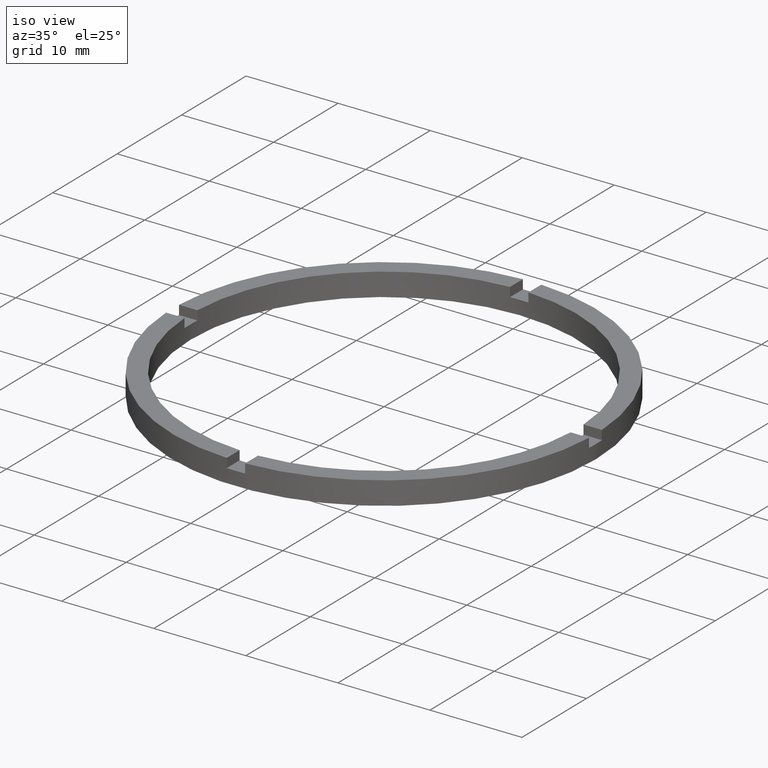
[diagram: clean part render]
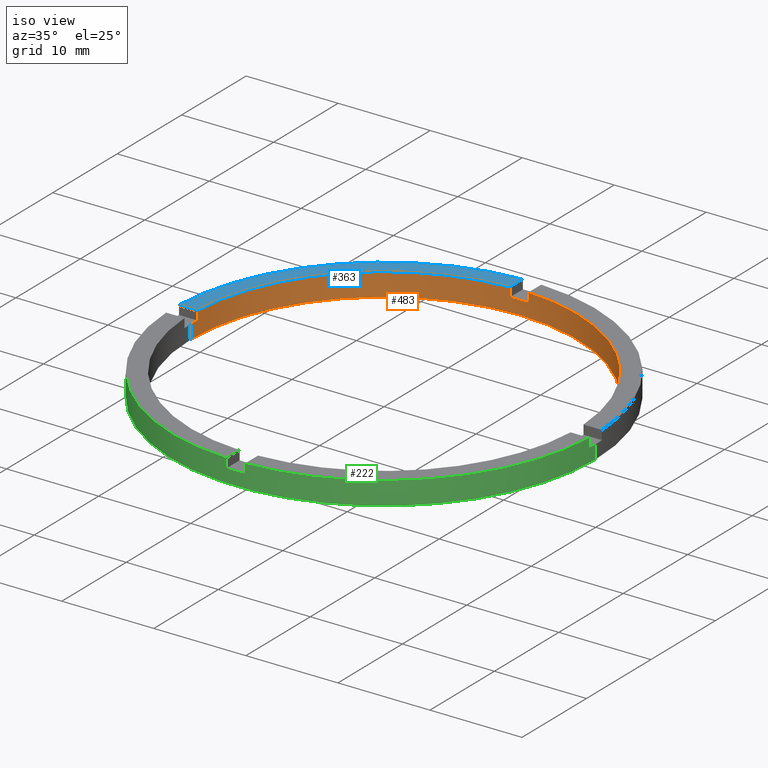
[diagram: same view with three faces highlighted in distinct colors, each labeled with its STEP entity id]
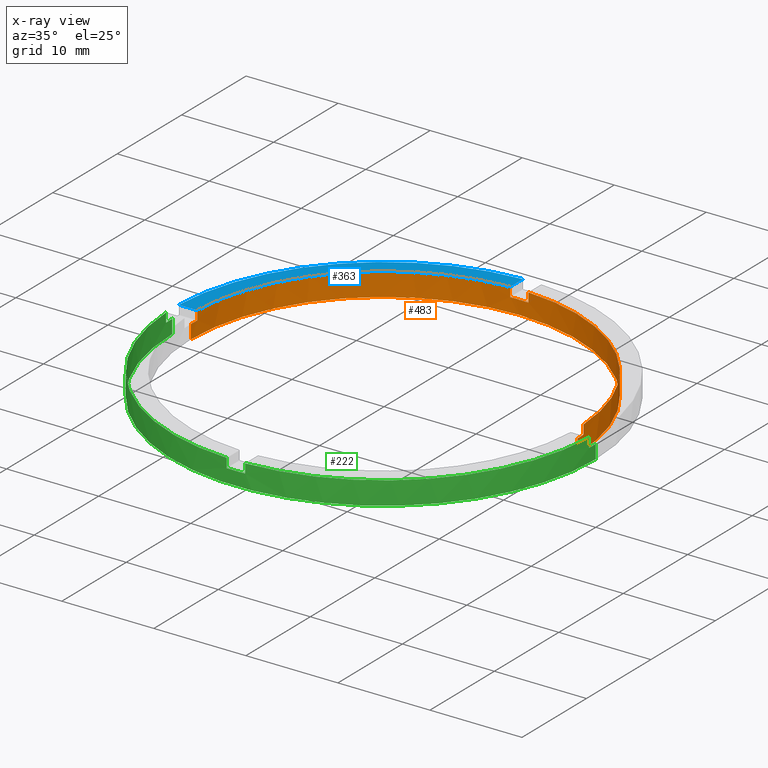
[diagram: x-ray of the same camera — body ghosted, the three highlighted faces saturated]
A machine part, iso view with three faces highlighted in distinct colors.
The next image is the same camera in x-ray (body ghosted, the three faces saturated) — at least one of them is partly hidden behind the body in this view.
Their STEP definitions:

[orange] entity #483 — the highlighted cylindrical surface (partial cylindrical patch) has radius 21 mm, axis along (-0, -0, -1).
#11 = EDGE_LOOP ( 'NONE', ( #574, #739, #545, #306, #509, #579, #757, #229, #475, #28, #548, #562 ) ) ;
#12 = EDGE_CURVE ( 'NONE', #748, #541, #664, .T. ) ;
#25 = CARTESIAN_POINT ( 'NONE',  ( 20.97617696340304150, 0.9999999999998419042, 2.500000000000000000 ) ) ;
#28 = ORIENTED_EDGE ( 'NONE', *, *, #172, .T. ) ;
#30 = DIRECTION ( 'NONE',  ( -0.000000000000000000, -0.000000000000000000, -1.000000000000000000 ) ) ;
#38 = DIRECTION ( 'NONE',  ( -0.000000000000000000, -0.000000000000000000, -1.000000000000000000 ) ) ;
#41 = VERTEX_POINT ( 'NONE', #604 ) ;
#70 = EDGE_CURVE ( 'NONE', #41, #119, #364, .T. ) ;
#72 = AXIS2_PLACEMENT_3D ( 'NONE', #301, #345, #282 ) ;
#83 = CARTESIAN_POINT ( 'NONE',  ( 0.000000000000000000, 0.000000000000000000, 2.500000000000000000 ) ) ;
#98 = DIRECTION ( 'NONE',  ( 0.000000000000000000, 0.000000000000000000, 1.000000000000000000 ) ) ;
#103 = AXIS2_PLACEMENT_3D ( 'NONE', #646, #770, #223 ) ;
#104 = DIRECTION ( 'NONE',  ( 0.000000000000000000, 0.000000000000000000, 1.000000000000000000 ) ) ;
#107 = VECTOR ( 'NONE', #38, 1000.000000000000000 ) ;
#119 = VERTEX_POINT ( 'NONE', #544 ) ;
#138 = VECTOR ( 'NONE', #212, 1000.000000000000000 ) ;
#152 = CARTESIAN_POINT ( 'NONE',  ( -21.00000000000000000, 0.000000000000000000, 2.500000000000000000 ) ) ;
#161 = CARTESIAN_POINT ( 'NONE',  ( 20.97617696340304150, 0.9999999999998419042, 2.500000000000000000 ) ) ;
#163 = CARTESIAN_POINT ( 'NONE',  ( 0.000000000000000000, 0.000000000000000000, 1.500000000000000000 ) ) ;
#168 = CYLINDRICAL_SURFACE ( 'NONE', #263, 21.00000000000000000 ) ;
#169 = DIRECTION ( 'NONE',  ( 1.000000000000000000, 0.000000000000000000, 0.000000000000000000 ) ) ;
#172 = EDGE_CURVE ( 'NONE', #537, #267, #392, .T. ) ;
#183 = LINE ( 'NONE', #668, #454 ) ;
#212 = DIRECTION ( 'NONE',  ( -0.000000000000000000, -0.000000000000000000, -1.000000000000000000 ) ) ;
#223 = DIRECTION ( 'NONE',  ( 1.000000000000000000, 0.000000000000000000, 0.000000000000000000 ) ) ;
#227 = CARTESIAN_POINT ( 'NONE',  ( -20.97617696340303439, 0.9999999999999749090, 1.500000000000000000 ) ) ;
#228 = DIRECTION ( 'NONE',  ( 0.000000000000000000, 0.000000000000000000, 1.000000000000000000 ) ) ;
#229 = ORIENTED_EDGE ( 'NONE', *, *, #70, .T. ) ;
#239 = CARTESIAN_POINT ( 'NONE',  ( 21.00000000000000000, 2.571758278209441661E-15, 1.500000000000000000 ) ) ;
#259 = EDGE_CURVE ( 'NONE', #638, #504, #677, .T. ) ;
#263 = AXIS2_PLACEMENT_3D ( 'NONE', #83, #327, #760 ) ;
#267 = VERTEX_POINT ( 'NONE', #776 ) ;
#274 = DIRECTION ( 'NONE',  ( 1.000000000000000000, 0.000000000000000000, 0.000000000000000000 ) ) ;
#277 = DIRECTION ( 'NONE',  ( 0.000000000000000000, 0.000000000000000000, 1.000000000000000000 ) ) ;
#282 = DIRECTION ( 'NONE',  ( 1.000000000000000000, 0.000000000000000000, 0.000000000000000000 ) ) ;
#298 = EDGE_CURVE ( 'NONE', #537, #119, #425, .T. ) ;
#301 = CARTESIAN_POINT ( 'NONE',  ( 0.000000000000000000, 0.000000000000000000, 2.500000000000000000 ) ) ;
#306 = ORIENTED_EDGE ( 'NONE', *, *, #581, .T. ) ;
#327 = DIRECTION ( 'NONE',  ( -0.000000000000000000, -0.000000000000000000, -1.000000000000000000 ) ) ;
#339 = CARTESIAN_POINT ( 'NONE',  ( 20.97617696340304150, 0.9999999999998419042, 1.500000000000000000 ) ) ;
#341 = CARTESIAN_POINT ( 'NONE',  ( -1.000000000000025757, 20.97617696340303084, 1.500000000000000000 ) ) ;
#345 = DIRECTION ( 'NONE',  ( 0.000000000000000000, 0.000000000000000000, 1.000000000000000000 ) ) ;
#364 = CIRCLE ( 'NONE', #558, 21.00000000000000000 ) ;
#388 = CARTESIAN_POINT ( 'NONE',  ( 21.00000000000000000, 2.571758278209441661E-15, 0.000000000000000000 ) ) ;
#392 = CIRCLE ( 'NONE', #399, 21.00000000000000000 ) ;
#397 = VERTEX_POINT ( 'NONE', #388 ) ;
#398 = VERTEX_POINT ( 'NONE', #754 ) ;
#399 = AXIS2_PLACEMENT_3D ( 'NONE', #431, #98, #422 ) ;
#413 = VECTOR ( 'NONE', #104, 1000.000000000000000 ) ;
#422 = DIRECTION ( 'NONE',  ( 1.000000000000000000, 0.000000000000000000, 0.000000000000000000 ) ) ;
#424 = CIRCLE ( 'NONE', #72, 21.00000000000000000 ) ;
#425 = LINE ( 'NONE', #633, #429 ) ;
#428 = FACE_OUTER_BOUND ( 'NONE', #11, .T. ) ;
#429 = VECTOR ( 'NONE', #277, 1000.000000000000000 ) ;
#431 = CARTESIAN_POINT ( 'NONE',  ( 0.000000000000000000, 0.000000000000000000, 1.500000000000000000 ) ) ;
#435 = CIRCLE ( 'NONE', #746, 21.00000000000000000 ) ;
#436 = CIRCLE ( 'NONE', #563, 21.00000000000000000 ) ;
#450 = EDGE_CURVE ( 'NONE', #560, #397, #678, .T. ) ;
#454 = VECTOR ( 'NONE', #600, 1000.000000000000000 ) ;
#461 = EDGE_CURVE ( 'NONE', #397, #398, #436, .T. ) ;
#471 = DIRECTION ( 'NONE',  ( 0.000000000000000000, 0.000000000000000000, 1.000000000000000000 ) ) ;
#475 = ORIENTED_EDGE ( 'NONE', *, *, #298, .F. ) ;
#483 = ADVANCED_FACE ( 'NONE', ( #428 ), #168, .F. ) ;
#486 = DIRECTION ( 'NONE',  ( 1.000000000000000000, 0.000000000000000000, 0.000000000000000000 ) ) ;
#489 = EDGE_CURVE ( 'NONE', #267, #398, #687, .T. ) ;
#497 = EDGE_CURVE ( 'NONE', #560, #541, #435, .T. ) ;
#504 = VERTEX_POINT ( 'NONE', #341 ) ;
#509 = ORIENTED_EDGE ( 'NONE', *, *, #561, .F. ) ;
#537 = VERTEX_POINT ( 'NONE', #227 ) ;
#541 = VERTEX_POINT ( 'NONE', #339 ) ;
#544 = CARTESIAN_POINT ( 'NONE',  ( -20.97617696340303439, 0.9999999999999749090, 2.500000000000000000 ) ) ;
#545 = ORIENTED_EDGE ( 'NONE', *, *, #12, .F. ) ;
#548 = ORIENTED_EDGE ( 'NONE', *, *, #489, .T. ) ;
#558 = AXIS2_PLACEMENT_3D ( 'NONE', #566, #228, #486 ) ;
#560 = VERTEX_POINT ( 'NONE', #239 ) ;
#561 = EDGE_CURVE ( 'NONE', #638, #576, #688, .T. ) ;
#562 = ORIENTED_EDGE ( 'NONE', *, *, #461, .F. ) ;
#563 = AXIS2_PLACEMENT_3D ( 'NONE', #583, #471, #169 ) ;
#566 = CARTESIAN_POINT ( 'NONE',  ( 0.000000000000000000, 0.000000000000000000, 2.500000000000000000 ) ) ;
#574 = ORIENTED_EDGE ( 'NONE', *, *, #450, .F. ) ;
#576 = VERTEX_POINT ( 'NONE', #685 ) ;
#579 = ORIENTED_EDGE ( 'NONE', *, *, #259, .T. ) ;
#581 = EDGE_CURVE ( 'NONE', #748, #576, #424, .T. ) ;
#583 = CARTESIAN_POINT ( 'NONE',  ( 0.000000000000000000, 0.000000000000000000, 0.000000000000000000 ) ) ;
#588 = DIRECTION ( 'NONE',  ( 0.000000000000000000, 0.000000000000000000, 1.000000000000000000 ) ) ;
#600 = DIRECTION ( 'NONE',  ( -0.000000000000000000, -0.000000000000000000, -1.000000000000000000 ) ) ;
#604 = CARTESIAN_POINT ( 'NONE',  ( -1.000000000000025757, 20.97617696340303084, 2.500000000000000000 ) ) ;
#633 = CARTESIAN_POINT ( 'NONE',  ( -20.97617696340303439, 0.9999999999999749090, 2.500000000000000000 ) ) ;
#638 = VERTEX_POINT ( 'NONE', #690 ) ;
#646 = CARTESIAN_POINT ( 'NONE',  ( 0.000000000000000000, 0.000000000000000000, 1.500000000000000000 ) ) ;
#655 = CARTESIAN_POINT ( 'NONE',  ( 21.00000000000000000, 2.571758278209441661E-15, 2.500000000000000000 ) ) ;
#664 = LINE ( 'NONE', #161, #107 ) ;
#668 = CARTESIAN_POINT ( 'NONE',  ( -1.000000000000025757, 20.97617696340303084, 2.500000000000000000 ) ) ;
#677 = CIRCLE ( 'NONE', #103, 21.00000000000000000 ) ;
#678 = LINE ( 'NONE', #655, #138 ) ;
#679 = CARTESIAN_POINT ( 'NONE',  ( 0.9999999999999742428, 20.97617696340303439, 2.500000000000000000 ) ) ;
#685 = CARTESIAN_POINT ( 'NONE',  ( 0.9999999999999742428, 20.97617696340303439, 2.500000000000000000 ) ) ;
#687 = LINE ( 'NONE', #152, #689 ) ;
#688 = LINE ( 'NONE', #679, #413 ) ;
#689 = VECTOR ( 'NONE', #30, 1000.000000000000000 ) ;
#690 = CARTESIAN_POINT ( 'NONE',  ( 0.9999999999999742428, 20.97617696340303439, 1.500000000000000000 ) ) ;
#739 = ORIENTED_EDGE ( 'NONE', *, *, #497, .T. ) ;
#746 = AXIS2_PLACEMENT_3D ( 'NONE', #163, #588, #274 ) ;
#748 = VERTEX_POINT ( 'NONE', #25 ) ;
#754 = CARTESIAN_POINT ( 'NONE',  ( -21.00000000000000000, 0.000000000000000000, 0.000000000000000000 ) ) ;
#757 = ORIENTED_EDGE ( 'NONE', *, *, #766, .F. ) ;
#760 = DIRECTION ( 'NONE',  ( -1.000000000000000000, 0.000000000000000000, 0.000000000000000000 ) ) ;
#766 = EDGE_CURVE ( 'NONE', #41, #504, #183, .T. ) ;
#770 = DIRECTION ( 'NONE',  ( 0.000000000000000000, -0.000000000000000000, 1.000000000000000000 ) ) ;
#776 = CARTESIAN_POINT ( 'NONE',  ( -21.00000000000000000, 0.000000000000000000, 1.500000000000000000 ) ) ;

[blue] entity #363 — the highlighted planar face has unit normal (0, 0, 1).
#41 = VERTEX_POINT ( 'NONE', #604 ) ;
#52 = DIRECTION ( 'NONE',  ( -1.000000000000000000, -1.734723475976807341E-16, 0.000000000000000000 ) ) ;
#64 = CARTESIAN_POINT ( 'NONE',  ( -1.000000000000025757, 22.97825058615211091, 2.500000000000000000 ) ) ;
#70 = EDGE_CURVE ( 'NONE', #41, #119, #364, .T. ) ;
#97 = DIRECTION ( 'NONE',  ( 1.000000000000000000, 0.000000000000000000, 0.000000000000000000 ) ) ;
#118 = ORIENTED_EDGE ( 'NONE', *, *, #589, .F. ) ;
#119 = VERTEX_POINT ( 'NONE', #544 ) ;
#139 = LINE ( 'NONE', #507, #699 ) ;
#166 = CIRCLE ( 'NONE', #361, 23.00000000000000000 ) ;
#201 = ORIENTED_EDGE ( 'NONE', *, *, #70, .F. ) ;
#228 = DIRECTION ( 'NONE',  ( 0.000000000000000000, 0.000000000000000000, 1.000000000000000000 ) ) ;
#258 = EDGE_CURVE ( 'NONE', #720, #41, #139, .T. ) ;
#295 = CARTESIAN_POINT ( 'NONE',  ( 0.000000000000000000, 0.000000000000000000, 2.500000000000000000 ) ) ;
#324 = DIRECTION ( 'NONE',  ( 1.000000000000000000, 0.000000000000000000, -0.000000000000000000 ) ) ;
#335 = DIRECTION ( 'NONE',  ( -0.000000000000000000, -1.000000000000000000, -0.000000000000000000 ) ) ;
#361 = AXIS2_PLACEMENT_3D ( 'NONE', #295, #421, #97 ) ;
#363 = ADVANCED_FACE ( 'NONE', ( #686 ), #712, .T. ) ;
#364 = CIRCLE ( 'NONE', #558, 21.00000000000000000 ) ;
#421 = DIRECTION ( 'NONE',  ( 0.000000000000000000, 0.000000000000000000, 1.000000000000000000 ) ) ;
#433 = LINE ( 'NONE', #670, #698 ) ;
#472 = ORIENTED_EDGE ( 'NONE', *, *, #258, .F. ) ;
#485 = CARTESIAN_POINT ( 'NONE',  ( 0.000000000000000000, 0.000000000000000000, 2.500000000000000000 ) ) ;
#486 = DIRECTION ( 'NONE',  ( 1.000000000000000000, 0.000000000000000000, 0.000000000000000000 ) ) ;
#506 = EDGE_CURVE ( 'NONE', #720, #740, #166, .T. ) ;
#507 = CARTESIAN_POINT ( 'NONE',  ( -1.000000000000025757, 13.00000000000000000, 2.500000000000000000 ) ) ;
#544 = CARTESIAN_POINT ( 'NONE',  ( -20.97617696340303439, 0.9999999999999749090, 2.500000000000000000 ) ) ;
#558 = AXIS2_PLACEMENT_3D ( 'NONE', #566, #228, #486 ) ;
#566 = CARTESIAN_POINT ( 'NONE',  ( 0.000000000000000000, 0.000000000000000000, 2.500000000000000000 ) ) ;
#571 = CARTESIAN_POINT ( 'NONE',  ( -22.97825058615211447, 0.9999999999999746869, 2.500000000000000000 ) ) ;
#589 = EDGE_CURVE ( 'NONE', #119, #740, #433, .T. ) ;
#604 = CARTESIAN_POINT ( 'NONE',  ( -1.000000000000025757, 20.97617696340303084, 2.500000000000000000 ) ) ;
#661 = ORIENTED_EDGE ( 'NONE', *, *, #506, .T. ) ;
#665 = AXIS2_PLACEMENT_3D ( 'NONE', #485, #774, #324 ) ;
#670 = CARTESIAN_POINT ( 'NONE',  ( -13.00000000000018474, 0.9999999999999763522, 2.500000000000000000 ) ) ;
#686 = FACE_OUTER_BOUND ( 'NONE', #725, .T. ) ;
#698 = VECTOR ( 'NONE', #52, 1000.000000000000000 ) ;
#699 = VECTOR ( 'NONE', #335, 1000.000000000000000 ) ;
#712 = PLANE ( 'NONE',  #665 ) ;
#720 = VERTEX_POINT ( 'NONE', #64 ) ;
#725 = EDGE_LOOP ( 'NONE', ( #472, #661, #118, #201 ) ) ;
#740 = VERTEX_POINT ( 'NONE', #571 ) ;
#774 = DIRECTION ( 'NONE',  ( 0.000000000000000000, 0.000000000000000000, 1.000000000000000000 ) ) ;

[green] entity #222 — the highlighted cylindrical surface (partial cylindrical patch) has radius 23 mm, axis along (-0, -0, -1).
#3 = DIRECTION ( 'NONE',  ( 1.000000000000000000, 0.000000000000000000, 0.000000000000000000 ) ) ;
#8 = ORIENTED_EDGE ( 'NONE', *, *, #148, .T. ) ;
#13 = VERTEX_POINT ( 'NONE', #663 ) ;
#14 = VERTEX_POINT ( 'NONE', #88 ) ;
#15 = AXIS2_PLACEMENT_3D ( 'NONE', #333, #526, #594 ) ;
#17 = CARTESIAN_POINT ( 'NONE',  ( 0.000000000000000000, 0.000000000000000000, 2.500000000000000000 ) ) ;
#24 = ORIENTED_EDGE ( 'NONE', *, *, #419, .F. ) ;
#31 = ORIENTED_EDGE ( 'NONE', *, *, #465, .T. ) ;
#62 = DIRECTION ( 'NONE',  ( -0.000000000000000000, -0.000000000000000000, -1.000000000000000000 ) ) ;
#79 = CARTESIAN_POINT ( 'NONE',  ( 0.000000000000000000, 0.000000000000000000, 0.000000000000000000 ) ) ;
#86 = CARTESIAN_POINT ( 'NONE',  ( 0.000000000000000000, 0.000000000000000000, 2.500000000000000000 ) ) ;
#88 = CARTESIAN_POINT ( 'NONE',  ( 0.9999999999998391287, -22.97825058615211802, 2.500000000000000000 ) ) ;
#96 = LINE ( 'NONE', #189, #105 ) ;
#100 = ORIENTED_EDGE ( 'NONE', *, *, #696, .F. ) ;
#105 = VECTOR ( 'NONE', #235, 1000.000000000000000 ) ;
#115 = CYLINDRICAL_SURFACE ( 'NONE', #495, 23.00000000000000000 ) ;
#116 = AXIS2_PLACEMENT_3D ( 'NONE', #735, #346, #598 ) ;
#124 = VERTEX_POINT ( 'NONE', #599 ) ;
#126 = CARTESIAN_POINT ( 'NONE',  ( -23.00000000000000000, 0.000000000000000000, 2.500000000000000000 ) ) ;
#128 = FACE_OUTER_BOUND ( 'NONE', #573, .T. ) ;
#129 = CARTESIAN_POINT ( 'NONE',  ( -1.000000000000160982, -22.97825058615210381, 1.500000000000000000 ) ) ;
#132 = ORIENTED_EDGE ( 'NONE', *, *, #393, .T. ) ;
#137 = LINE ( 'NONE', #140, #680 ) ;
#140 = CARTESIAN_POINT ( 'NONE',  ( -1.000000000000160982, -22.97825058615210381, 2.500000000000000000 ) ) ;
#143 = CIRCLE ( 'NONE', #593, 23.00000000000000000 ) ;
#144 = LINE ( 'NONE', #126, #440 ) ;
#148 = EDGE_CURVE ( 'NONE', #275, #578, #96, .T. ) ;
#153 = AXIS2_PLACEMENT_3D ( 'NONE', #217, #532, #406 ) ;
#174 = DIRECTION ( 'NONE',  ( -0.000000000000000000, -0.000000000000000000, -1.000000000000000000 ) ) ;
#179 = LINE ( 'NONE', #362, #447 ) ;
#189 = CARTESIAN_POINT ( 'NONE',  ( 22.97825058615210381, -1.000000000000157874, 2.500000000000000000 ) ) ;
#190 = CIRCLE ( 'NONE', #610, 23.00000000000000000 ) ;
#193 = DIRECTION ( 'NONE',  ( -0.000000000000000000, -0.000000000000000000, -1.000000000000000000 ) ) ;
#217 = CARTESIAN_POINT ( 'NONE',  ( 0.000000000000000000, 0.000000000000000000, 2.500000000000000000 ) ) ;
#221 = EDGE_CURVE ( 'NONE', #14, #578, #662, .T. ) ;
#222 = ADVANCED_FACE ( 'NONE', ( #128 ), #115, .T. ) ;
#233 = VERTEX_POINT ( 'NONE', #281 ) ;
#235 = DIRECTION ( 'NONE',  ( 0.000000000000000000, 0.000000000000000000, 1.000000000000000000 ) ) ;
#237 = VERTEX_POINT ( 'NONE', #724 ) ;
#256 = CARTESIAN_POINT ( 'NONE',  ( -22.97825058615211091, -1.000000000000025313, 2.500000000000000000 ) ) ;
#275 = VERTEX_POINT ( 'NONE', #590 ) ;
#279 = DIRECTION ( 'NONE',  ( 1.000000000000000000, 0.000000000000000000, 0.000000000000000000 ) ) ;
#281 = CARTESIAN_POINT ( 'NONE',  ( 23.00000000000000000, 2.816687638038912352E-15, 0.000000000000000000 ) ) ;
#283 = ORIENTED_EDGE ( 'NONE', *, *, #350, .T. ) ;
#333 = CARTESIAN_POINT ( 'NONE',  ( 0.000000000000000000, 0.000000000000000000, 1.500000000000000000 ) ) ;
#346 = DIRECTION ( 'NONE',  ( -0.000000000000000000, 0.000000000000000000, 1.000000000000000000 ) ) ;
#350 = EDGE_CURVE ( 'NONE', #237, #124, #144, .T. ) ;
#362 = CARTESIAN_POINT ( 'NONE',  ( 23.00000000000000000, 2.816687638038912352E-15, 2.500000000000000000 ) ) ;
#383 = ORIENTED_EDGE ( 'NONE', *, *, #516, .F. ) ;
#387 = VERTEX_POINT ( 'NONE', #395 ) ;
#389 = VERTEX_POINT ( 'NONE', #534 ) ;
#393 = EDGE_CURVE ( 'NONE', #726, #13, #137, .T. ) ;
#395 = CARTESIAN_POINT ( 'NONE',  ( 0.9999999999998391287, -22.97825058615211802, 1.500000000000000000 ) ) ;
#406 = DIRECTION ( 'NONE',  ( 1.000000000000000000, 0.000000000000000000, 0.000000000000000000 ) ) ;
#409 = EDGE_CURVE ( 'NONE', #14, #387, #693, .T. ) ;
#412 = DIRECTION ( 'NONE',  ( -0.000000000000000000, -0.000000000000000000, -1.000000000000000000 ) ) ;
#417 = CARTESIAN_POINT ( 'NONE',  ( 22.97825058615210381, -1.000000000000157874, 2.500000000000000000 ) ) ;
#419 = EDGE_CURVE ( 'NONE', #237, #467, #702, .T. ) ;
#440 = VECTOR ( 'NONE', #412, 1000.000000000000000 ) ;
#447 = VECTOR ( 'NONE', #193, 1000.000000000000000 ) ;
#448 = VECTOR ( 'NONE', #62, 1000.000000000000000 ) ;
#453 = DIRECTION ( 'NONE',  ( 0.000000000000000000, 0.000000000000000000, 1.000000000000000000 ) ) ;
#459 = VERTEX_POINT ( 'NONE', #723 ) ;
#465 = EDGE_CURVE ( 'NONE', #124, #233, #143, .T. ) ;
#467 = VERTEX_POINT ( 'NONE', #580 ) ;
#495 = AXIS2_PLACEMENT_3D ( 'NONE', #86, #174, #592 ) ;
#508 = CARTESIAN_POINT ( 'NONE',  ( 0.000000000000000000, 0.000000000000000000, 1.500000000000000000 ) ) ;
#516 = EDGE_CURVE ( 'NONE', #726, #387, #683, .T. ) ;
#519 = DIRECTION ( 'NONE',  ( -0.000000000000000000, -0.000000000000000000, -1.000000000000000000 ) ) ;
#526 = DIRECTION ( 'NONE',  ( 0.000000000000000000, 0.000000000000000000, 1.000000000000000000 ) ) ;
#532 = DIRECTION ( 'NONE',  ( 0.000000000000000000, 0.000000000000000000, 1.000000000000000000 ) ) ;
#533 = ORIENTED_EDGE ( 'NONE', *, *, #704, .F. ) ;
#534 = CARTESIAN_POINT ( 'NONE',  ( 23.00000000000000000, 2.816687638038912352E-15, 1.500000000000000000 ) ) ;
#551 = ORIENTED_EDGE ( 'NONE', *, *, #744, .T. ) ;
#573 = EDGE_LOOP ( 'NONE', ( #722, #100, #8, #641, #635, #383, #132, #533, #551, #24, #283, #31 ) ) ;
#578 = VERTEX_POINT ( 'NONE', #417 ) ;
#580 = CARTESIAN_POINT ( 'NONE',  ( -22.97825058615211091, -1.000000000000025313, 1.500000000000000000 ) ) ;
#590 = CARTESIAN_POINT ( 'NONE',  ( 22.97825058615210381, -1.000000000000157874, 1.500000000000000000 ) ) ;
#592 = DIRECTION ( 'NONE',  ( -1.000000000000000000, 0.000000000000000000, 0.000000000000000000 ) ) ;
#593 = AXIS2_PLACEMENT_3D ( 'NONE', #79, #627, #279 ) ;
#594 = DIRECTION ( 'NONE',  ( 1.000000000000000000, 0.000000000000000000, 0.000000000000000000 ) ) ;
#598 = DIRECTION ( 'NONE',  ( 1.000000000000000000, 0.000000000000000000, 0.000000000000000000 ) ) ;
#599 = CARTESIAN_POINT ( 'NONE',  ( -23.00000000000000000, 0.000000000000000000, 0.000000000000000000 ) ) ;
#610 = AXIS2_PLACEMENT_3D ( 'NONE', #17, #453, #619 ) ;
#619 = DIRECTION ( 'NONE',  ( 1.000000000000000000, 0.000000000000000000, 0.000000000000000000 ) ) ;
#627 = DIRECTION ( 'NONE',  ( 0.000000000000000000, 0.000000000000000000, 1.000000000000000000 ) ) ;
#628 = EDGE_CURVE ( 'NONE', #389, #233, #179, .T. ) ;
#635 = ORIENTED_EDGE ( 'NONE', *, *, #409, .T. ) ;
#641 = ORIENTED_EDGE ( 'NONE', *, *, #221, .F. ) ;
#662 = CIRCLE ( 'NONE', #153, 23.00000000000000000 ) ;
#663 = CARTESIAN_POINT ( 'NONE',  ( -1.000000000000160982, -22.97825058615210381, 2.500000000000000000 ) ) ;
#673 = AXIS2_PLACEMENT_3D ( 'NONE', #508, #772, #3 ) ;
#680 = VECTOR ( 'NONE', #765, 1000.000000000000000 ) ;
#683 = CIRCLE ( 'NONE', #116, 23.00000000000000000 ) ;
#693 = LINE ( 'NONE', #728, #694 ) ;
#694 = VECTOR ( 'NONE', #519, 1000.000000000000000 ) ;
#696 = EDGE_CURVE ( 'NONE', #275, #389, #711, .T. ) ;
#702 = CIRCLE ( 'NONE', #15, 23.00000000000000000 ) ;
#704 = EDGE_CURVE ( 'NONE', #459, #13, #190, .T. ) ;
#711 = CIRCLE ( 'NONE', #673, 23.00000000000000000 ) ;
#714 = LINE ( 'NONE', #256, #448 ) ;
#722 = ORIENTED_EDGE ( 'NONE', *, *, #628, .F. ) ;
#723 = CARTESIAN_POINT ( 'NONE',  ( -22.97825058615211091, -1.000000000000025313, 2.500000000000000000 ) ) ;
#724 = CARTESIAN_POINT ( 'NONE',  ( -23.00000000000000000, 0.000000000000000000, 1.500000000000000000 ) ) ;
#726 = VERTEX_POINT ( 'NONE', #129 ) ;
#728 = CARTESIAN_POINT ( 'NONE',  ( 0.9999999999998391287, -22.97825058615211802, 2.500000000000000000 ) ) ;
#735 = CARTESIAN_POINT ( 'NONE',  ( 0.000000000000000000, 0.000000000000000000, 1.500000000000000000 ) ) ;
#744 = EDGE_CURVE ( 'NONE', #459, #467, #714, .T. ) ;
#765 = DIRECTION ( 'NONE',  ( 0.000000000000000000, 0.000000000000000000, 1.000000000000000000 ) ) ;
#772 = DIRECTION ( 'NONE',  ( 0.000000000000000000, 0.000000000000000000, 1.000000000000000000 ) ) ;